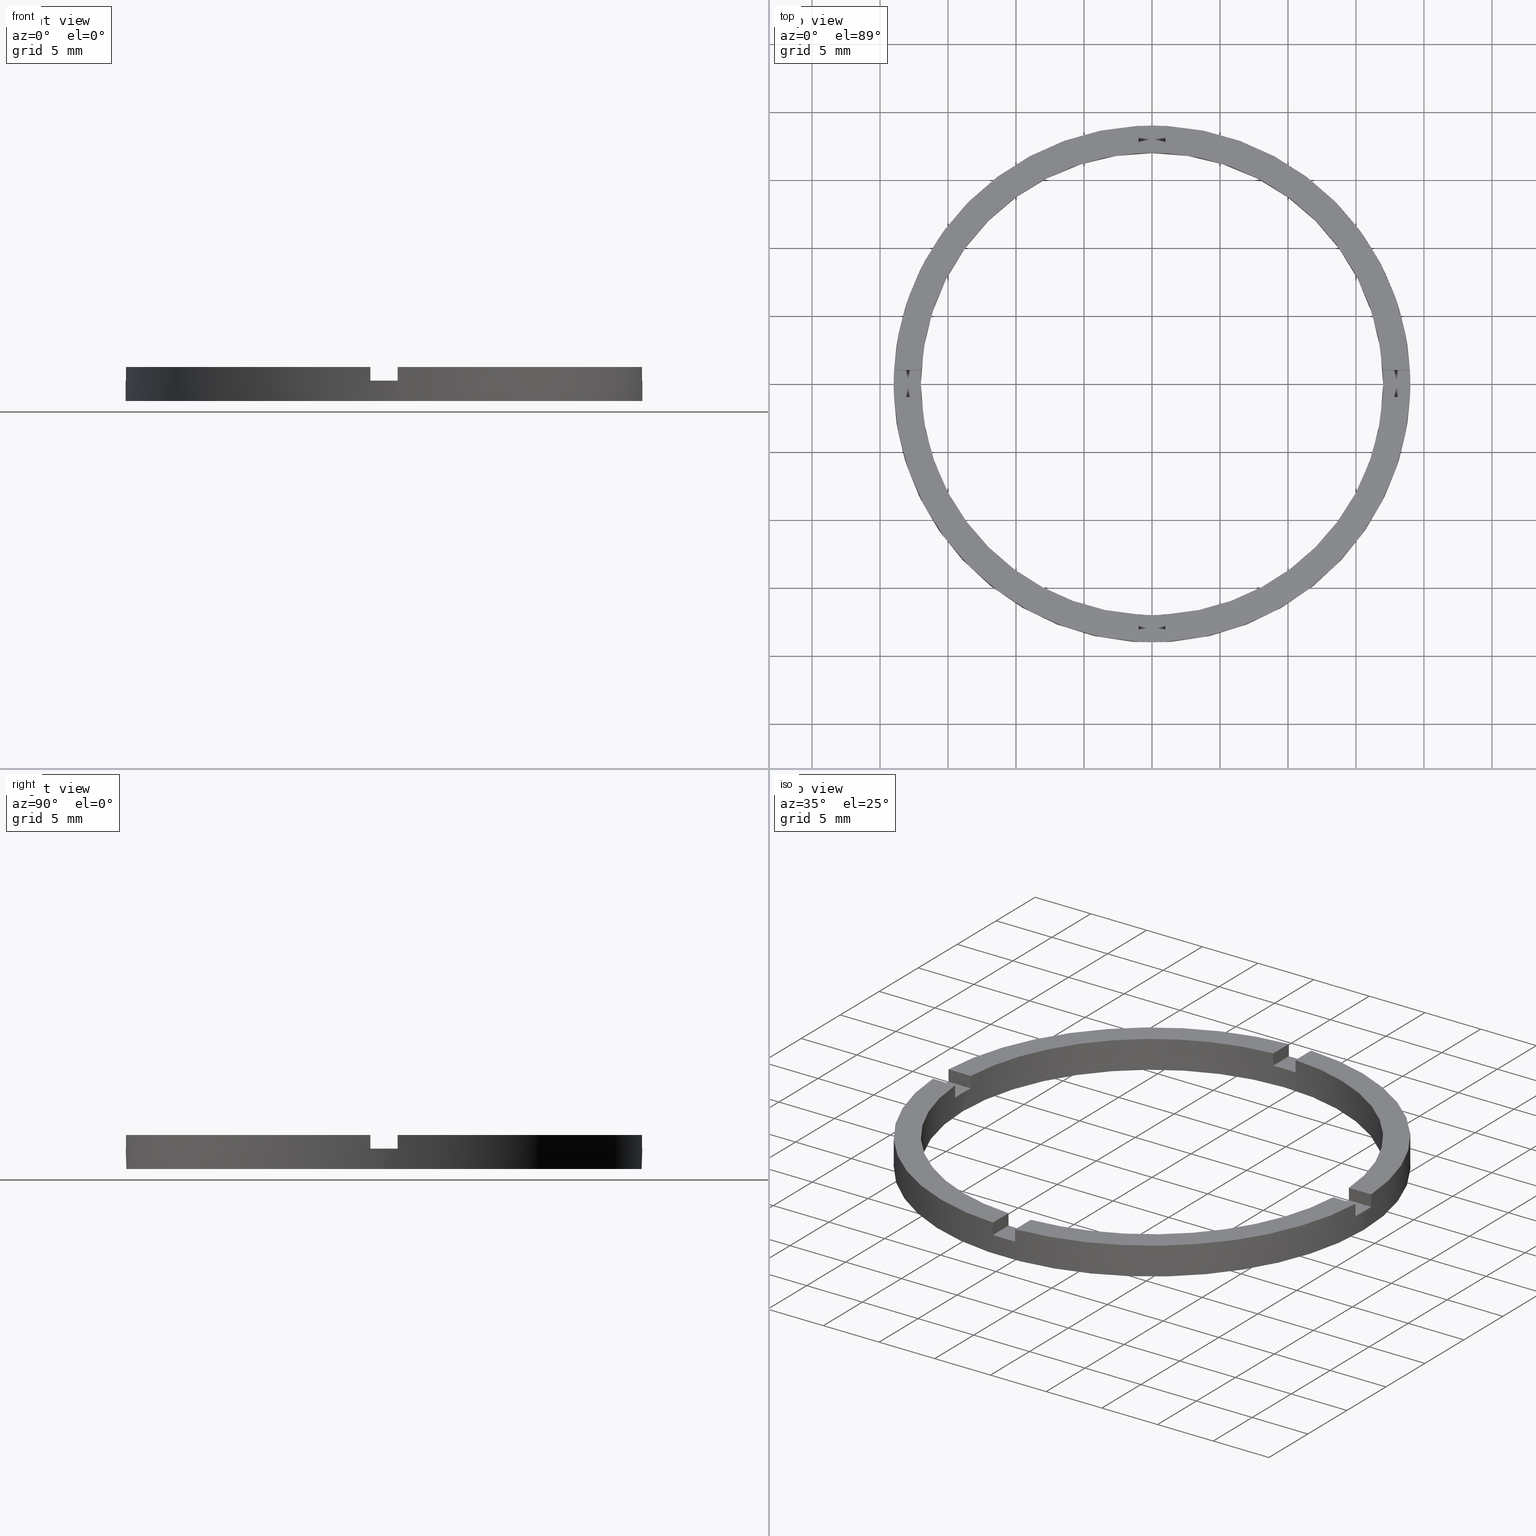
[diagram: canonical four-view strip — front | top / right | iso, engineering-drawing reading convention]
A machine part, canonical four-view strip (front | top / right | iso — engineering-drawing reading convention). The complete STEP part file that produces these views, byte-faithful:
ISO-10303-21;
HEADER;
FILE_DESCRIPTION (( 'STEP AP203' ),
    '1' );
FILE_NAME ('514081.step',
    '2024-12-26T02:35:44',
    ( 'MSI' ),
    ( '' ),
    'SwSTEP 2.0',
    'SolidWorks 2020',
    '' );
FILE_SCHEMA (( 'CONFIG_CONTROL_DESIGN' ));
ENDSEC;

DATA;
#1 = CARTESIAN_POINT ( 'NONE',  ( 0.9999999999999742428, 18.97366596101027270, 1.500000000000000000 ) ) ;
#2 = AXIS2_PLACEMENT_3D ( 'NONE', #350, #239, #781 ) ;
#3 = ADVANCED_FACE ( 'NONE', ( #130 ), #132, .F. ) ;
#4 = DIRECTION ( 'NONE',  ( -0.000000000000000000, -0.000000000000000000, -1.000000000000000000 ) ) ;
#5 = EDGE_CURVE ( 'NONE', #445, #578, #621, .T. ) ;
#6 = CARTESIAN_POINT ( 'NONE',  ( -1.000000000000024869, 16.97056274847713553, 1.500000000000000000 ) ) ;
#7 = PLANE ( 'NONE',  #146 ) ;
#8 = CARTESIAN_POINT ( 'NONE',  ( 0.9999999999999742428, 18.97366596101027270, 2.500000000000000000 ) ) ;
#9 = CC_DESIGN_APPROVAL ( #626, ( #159 ) ) ;
#10 = CARTESIAN_POINT ( 'NONE',  ( -1.000000000000024869, 16.97056274847713553, 2.500000000000000000 ) ) ;
#11 = CIRCLE ( 'NONE', #429, 17.00000000000000000 ) ;
#12 = ORIENTED_EDGE ( 'NONE', *, *, #493, .T. ) ;
#13 = CARTESIAN_POINT ( 'NONE',  ( 0.000000000000000000, 0.000000000000000000, 2.500000000000000000 ) ) ;
#14 = ORIENTED_EDGE ( 'NONE', *, *, #573, .T. ) ;
#15 = ORIENTED_EDGE ( 'NONE', *, *, #662, .F. ) ;
#16 = ORIENTED_EDGE ( 'NONE', *, *, #316, .T. ) ;
#17 = EDGE_CURVE ( 'NONE', #726, #559, #122, .T. ) ;
#18 = VERTEX_POINT ( 'NONE', #624 ) ;
#19 = PLANE ( 'NONE',  #244 ) ;
#20 = VERTEX_POINT ( 'NONE', #400 ) ;
#21 = VERTEX_POINT ( 'NONE', #743 ) ;
#22 = CIRCLE ( 'NONE', #608, 19.00000000000000000 ) ;
#23 = EDGE_LOOP ( 'NONE', ( #475, #202, #653, #313, #574, #131 ) ) ;
#24 = LINE ( 'NONE', #218, #540 ) ;
#25 = ORIENTED_EDGE ( 'NONE', *, *, #29, .F. ) ;
#26 = PERSON_AND_ORGANIZATION_ROLE ( 'creator' ) ;
#27 = ORIENTED_EDGE ( 'NONE', *, *, #503, .T. ) ;
#28 = EDGE_LOOP ( 'NONE', ( #395, #186, #567, #229 ) ) ;
#29 = EDGE_CURVE ( 'NONE', #526, #740, #384, .T. ) ;
#30 = VERTEX_POINT ( 'NONE', #10 ) ;
#31 = CARTESIAN_POINT ( 'NONE',  ( -1.000000000000161648, -18.97366596101026204, 2.500000000000000000 ) ) ;
#32 = AXIS2_PLACEMENT_3D ( 'NONE', #257, #660, #709 ) ;
#33 = EDGE_LOOP ( 'NONE', ( #16, #557, #490, #320 ) ) ;
#34 = VECTOR ( 'NONE', #83, 1000.000000000000000 ) ;
#35 = VERTEX_POINT ( 'NONE', #448 ) ;
#36 = FACE_OUTER_BOUND ( 'NONE', #446, .T. ) ;
#37 = ORIENTED_EDGE ( 'NONE', *, *, #529, .F. ) ;
#38 = LINE ( 'NONE', #456, #305 ) ;
#39 = CARTESIAN_POINT ( 'NONE',  ( -16.97056274847714263, 0.9999999999999759082, 1.500000000000000000 ) ) ;
#40 = DIRECTION ( 'NONE',  ( 0.000000000000000000, 0.000000000000000000, 1.000000000000000000 ) ) ;
#41 = CIRCLE ( 'NONE', #292, 19.00000000000000000 ) ;
#42 = EDGE_LOOP ( 'NONE', ( #555, #752, #303, #221, #732, #494, #14, #211, #728, #754, #497, #282 ) ) ;
#43 = CARTESIAN_POINT ( 'NONE',  ( 0.000000000000000000, 0.000000000000000000, 1.500000000000000000 ) ) ;
#44 = DIRECTION ( 'NONE',  ( 1.301042606982605074E-16, -1.000000000000000000, 0.000000000000000000 ) ) ;
#45 = ORIENTED_EDGE ( 'NONE', *, *, #695, .T. ) ;
#46 = ORIENTED_EDGE ( 'NONE', *, *, #604, .T. ) ;
#47 = ORIENTED_EDGE ( 'NONE', *, *, #322, .T. ) ;
#48 = DIRECTION ( 'NONE',  ( 1.301042606982605074E-16, -1.000000000000000000, 0.000000000000000000 ) ) ;
#49 = ORIENTED_EDGE ( 'NONE', *, *, #517, .F. ) ;
#50 = VERTEX_POINT ( 'NONE', #512 ) ;
#51 = CARTESIAN_POINT ( 'NONE',  ( -9.000000000000184741, 0.9999999999999774625, 2.500000000000000000 ) ) ;
#52 = ORIENTED_EDGE ( 'NONE', *, *, #250, .T. ) ;
#53 = ORIENTED_EDGE ( 'NONE', *, *, #443, .F. ) ;
#54 = DIRECTION ( 'NONE',  ( -1.000000000000000000, 0.000000000000000000, 0.000000000000000000 ) ) ;
#55 = ORIENTED_EDGE ( 'NONE', *, *, #78, .T. ) ;
#56 = ADVANCED_FACE ( 'NONE', ( #651 ), #19, .T. ) ;
#57 = DIRECTION ( 'NONE',  ( 0.000000000000000000, -0.000000000000000000, 1.000000000000000000 ) ) ;
#58 = CARTESIAN_POINT ( 'NONE',  ( -18.97366596101027625, -1.000000000000024203, 2.500000000000000000 ) ) ;
#59 = DIRECTION ( 'NONE',  ( 1.000000000000000000, 0.000000000000000000, 0.000000000000000000 ) ) ;
#60 = DIRECTION ( 'NONE',  ( 1.000000000000000000, 0.000000000000000000, 0.000000000000000000 ) ) ;
#61 = ADVANCED_FACE ( 'NONE', ( #645 ), #156, .F. ) ;
#62 = VECTOR ( 'NONE', #471, 1000.000000000000000 ) ;
#63 = VECTOR ( 'NONE', #670, 1000.000000000000000 ) ;
#64 = DIRECTION ( 'NONE',  ( 0.000000000000000000, 1.000000000000000000, 0.000000000000000000 ) ) ;
#65 = VECTOR ( 'NONE', #447, 1000.000000000000000 ) ;
#66 = EDGE_CURVE ( 'NONE', #537, #18, #369, .T. ) ;
#67 = FACE_OUTER_BOUND ( 'NONE', #708, .T. ) ;
#68 = CARTESIAN_POINT ( 'NONE',  ( 18.97366596101026914, -1.000000000000158540, 2.500000000000000000 ) ) ;
#69 = CIRCLE ( 'NONE', #765, 19.00000000000000000 ) ;
#70 = CARTESIAN_POINT ( 'NONE',  ( -17.00000000000000000, 0.000000000000000000, 1.500000000000000000 ) ) ;
#71 = FACE_OUTER_BOUND ( 'NONE', #308, .T. ) ;
#72 = VECTOR ( 'NONE', #212, 1000.000000000000000 ) ;
#73 = CARTESIAN_POINT ( 'NONE',  ( 0.000000000000000000, 0.000000000000000000, 1.500000000000000000 ) ) ;
#74 = CARTESIAN_POINT ( 'NONE',  ( 8.999999999999994671, 0.9999999999998411271, 1.500000000000000000 ) ) ;
#75 = EDGE_CURVE ( 'NONE', #569, #539, #107, .T. ) ;
#76 = CARTESIAN_POINT ( 'NONE',  ( 0.000000000000000000, 0.000000000000000000, 1.500000000000000000 ) ) ;
#77 = LINE ( 'NONE', #405, #607 ) ;
#78 = EDGE_CURVE ( 'NONE', #535, #570, #640, .T. ) ;
#79 = FACE_OUTER_BOUND ( 'NONE', #727, .T. ) ;
#80 = CARTESIAN_POINT ( 'NONE',  ( -1.000000000000025313, 9.000000000000000000, 1.500000000000000000 ) ) ;
#81 = CIRCLE ( 'NONE', #457, 17.00000000000000000 ) ;
#82 = VECTOR ( 'NONE', #172, 1000.000000000000000 ) ;
#83 = DIRECTION ( 'NONE',  ( -0.000000000000000000, -0.000000000000000000, -1.000000000000000000 ) ) ;
#84 = EDGE_CURVE ( 'NONE', #441, #210, #642, .T. ) ;
#85 = CARTESIAN_POINT ( 'NONE',  ( 17.00000000000000000, 2.081899558550500280E-15, 1.500000000000000000 ) ) ;
#86 = ADVANCED_FACE ( 'NONE', ( #128, #363 ), #314, .F. ) ;
#87 = CARTESIAN_POINT ( 'NONE',  ( -1.000000000000161871, -16.97056274847712842, 2.500000000000000000 ) ) ;
#88 = EDGE_CURVE ( 'NONE', #479, #18, #114, .T. ) ;
#89 = CC_DESIGN_SECURITY_CLASSIFICATION ( #595, ( #585 ) ) ;
#90 = DIRECTION ( 'NONE',  ( 0.000000000000000000, 0.000000000000000000, -1.000000000000000000 ) ) ;
#91 = CARTESIAN_POINT ( 'NONE',  ( 0.000000000000000000, 0.000000000000000000, 2.500000000000000000 ) ) ;
#92 = DIRECTION ( 'NONE',  ( -0.000000000000000000, -0.000000000000000000, -1.000000000000000000 ) ) ;
#93 = VECTOR ( 'NONE', #213, 1000.000000000000000 ) ;
#94 = EDGE_CURVE ( 'NONE', #462, #570, #99, .T. ) ;
#95 = DIRECTION ( 'NONE',  ( 1.000000000000000000, 0.000000000000000000, 0.000000000000000000 ) ) ;
#96 = LINE ( 'NONE', #418, #649 ) ;
#97 = AXIS2_PLACEMENT_3D ( 'NONE', #377, #402, #440 ) ;
#98 = CIRCLE ( 'NONE', #615, 19.00000000000000000 ) ;
#99 = CIRCLE ( 'NONE', #32, 19.00000000000000000 ) ;
#100 = FACE_OUTER_BOUND ( 'NONE', #500, .T. ) ;
#101 = CARTESIAN_POINT ( 'NONE',  ( -1.000000000000025313, 18.97366596101027625, 2.500000000000000000 ) ) ;
#102 = DIRECTION ( 'NONE',  ( 1.000000000000000000, 0.000000000000000000, 0.000000000000000000 ) ) ;
#103 = EDGE_CURVE ( 'NONE', #445, #21, #625, .T. ) ;
#104 = AXIS2_PLACEMENT_3D ( 'NONE', #378, #138, #188 ) ;
#105 = CARTESIAN_POINT ( 'NONE',  ( 0.000000000000000000, 0.000000000000000000, 0.000000000000000000 ) ) ;
#106 = LINE ( 'NONE', #614, #127 ) ;
#107 = CIRCLE ( 'NONE', #677, 17.00000000000000000 ) ;
#108 = CARTESIAN_POINT ( 'NONE',  ( -1.000000000000025313, 9.000000000000000000, 2.500000000000000000 ) ) ;
#109 = CARTESIAN_POINT ( 'NONE',  ( -9.000000000000184741, 0.9999999999999774625, 1.500000000000000000 ) ) ;
#110 = VECTOR ( 'NONE', #756, 1000.000000000000000 ) ;
#111 = AXIS2_PLACEMENT_3D ( 'NONE', #487, #782, #60 ) ;
#112 = ADVANCED_FACE ( 'NONE', ( #390 ), #611, .T. ) ;
#113 = DIRECTION ( 'NONE',  ( -0.000000000000000000, 0.000000000000000000, 1.000000000000000000 ) ) ;
#114 = CIRCLE ( 'NONE', #166, 17.00000000000000000 ) ;
#115 = DIRECTION ( 'NONE',  ( 1.000000000000000000, 0.000000000000000000, 0.000000000000000000 ) ) ;
#116 = LINE ( 'NONE', #364, #631 ) ;
#117 = VECTOR ( 'NONE', #182, 1000.000000000000000 ) ;
#118 = DIRECTION ( 'NONE',  ( -0.000000000000000000, -1.000000000000000000, -0.000000000000000000 ) ) ;
#119 = CARTESIAN_POINT ( 'NONE',  ( -9.000000000000184741, -1.000000000000022649, 1.500000000000000000 ) ) ;
#120 = VECTOR ( 'NONE', #175, 1000.000000000000000 ) ;
#121 = DIRECTION ( 'NONE',  ( 1.000000000000000000, 0.000000000000000000, 0.000000000000000000 ) ) ;
#122 = LINE ( 'NONE', #335, #635 ) ;
#123 = DIRECTION ( 'NONE',  ( 0.000000000000000000, 0.000000000000000000, 1.000000000000000000 ) ) ;
#124 = ADVANCED_FACE ( 'NONE', ( #362 ), #489, .T. ) ;
#125 = FACE_OUTER_BOUND ( 'NONE', #465, .T. ) ;
#126 = CARTESIAN_POINT ( 'NONE',  ( 0.000000000000000000, 0.000000000000000000, 2.500000000000000000 ) ) ;
#127 = VECTOR ( 'NONE', #610, 1000.000000000000000 ) ;
#128 = FACE_OUTER_BOUND ( 'NONE', #528, .T. ) ;
#129 = CARTESIAN_POINT ( 'NONE',  ( -18.97366596101027625, 0.9999999999999756861, 2.500000000000000000 ) ) ;
#130 = FACE_OUTER_BOUND ( 'NONE', #281, .T. ) ;
#131 = ORIENTED_EDGE ( 'NONE', *, *, #426, .T. ) ;
#132 = CYLINDRICAL_SURFACE ( 'NONE', #566, 17.00000000000000000 ) ;
#133 = CARTESIAN_POINT ( 'NONE',  ( 0.000000000000000000, 0.000000000000000000, 1.500000000000000000 ) ) ;
#134 = ORIENTED_EDGE ( 'NONE', *, *, #5, .F. ) ;
#135 = ORIENTED_EDGE ( 'NONE', *, *, #103, .T. ) ;
#136 = DIRECTION ( 'NONE',  ( 0.000000000000000000, 0.000000000000000000, 1.000000000000000000 ) ) ;
#137 = EDGE_CURVE ( 'NONE', #298, #535, #620, .T. ) ;
#138 = DIRECTION ( 'NONE',  ( 0.000000000000000000, -0.000000000000000000, 1.000000000000000000 ) ) ;
#139 = AXIS2_PLACEMENT_3D ( 'NONE', #91, #273, #522 ) ;
#140 = CARTESIAN_POINT ( 'NONE',  ( -1.000000000000162093, -18.97366596101026559, 2.500000000000000000 ) ) ;
#141 = DIRECTION ( 'NONE',  ( 0.000000000000000000, 1.000000000000000000, 0.000000000000000000 ) ) ;
#142 = COORDINATED_UNIVERSAL_TIME_OFFSET ( 8, 0, .AHEAD. ) ;
#143 = PERSON_AND_ORGANIZATION ( #579, #699 ) ;
#144 = EDGE_CURVE ( 'NONE', #569, #35, #358, .T. ) ;
#145 = DATE_AND_TIME ( #417, #155 ) ;
#146 = AXIS2_PLACEMENT_3D ( 'NONE', #587, #181, #90 ) ;
#147 = APPLICATION_CONTEXT ( 'configuration controlled 3d designs of mechanical parts and assemblies' ) ;
#148 = APPROVAL_DATE_TIME ( #689, #626 ) ;
#149 = LOCAL_TIME ( 10, 35, 44.00000000000000000, #142 ) ;
#150 = PRODUCT_RELATED_PRODUCT_CATEGORY ( 'detail', '', ( #514 ) ) ;
#151 = CARTESIAN_POINT ( 'NONE',  ( 0.9999999999998366862, -9.000000000000179412, 1.500000000000000000 ) ) ;
#152 = LOCAL_TIME ( 10, 35, 44.00000000000000000, #431 ) ;
#153 = CALENDAR_DATE ( 2024, 26, 12 ) ;
#154 = DIRECTION ( 'NONE',  ( 1.000000000000000000, 0.000000000000000000, 0.000000000000000000 ) ) ;
#155 = LOCAL_TIME ( 10, 35, 44.00000000000000000, #164 ) ;
#156 = PLANE ( 'NONE',  #702 ) ;
#157 = PERSON_AND_ORGANIZATION ( #579, #699 ) ;
#158 = PERSON_AND_ORGANIZATION ( #579, #699 ) ;
#159 = PRODUCT_DEFINITION ( 'δ֪', '', #585, #589 ) ;
#160 = APPROVAL_PERSON_ORGANIZATION ( #158, #626, #463 ) ;
#161 = CARTESIAN_POINT ( 'NONE',  ( 0.9999999999999746869, 16.97056274847714263, 2.500000000000000000 ) ) ;
#162 = DATE_TIME_ROLE ( 'classification_date' ) ;
#163 = PERSON_AND_ORGANIZATION ( #579, #699 ) ;
#164 = COORDINATED_UNIVERSAL_TIME_OFFSET ( 8, 0, .AHEAD. ) ;
#165 = CARTESIAN_POINT ( 'NONE',  ( 8.999999999999994671, -1.000000000000158984, 1.500000000000000000 ) ) ;
#166 = AXIS2_PLACEMENT_3D ( 'NONE', #73, #525, #675 ) ;
#167 = DIRECTION ( 'NONE',  ( -0.000000000000000000, -0.000000000000000000, -1.000000000000000000 ) ) ;
#168 = VERTEX_POINT ( 'NONE', #1 ) ;
#169 = CARTESIAN_POINT ( 'NONE',  ( 8.999999999999994671, -1.000000000000158984, 2.500000000000000000 ) ) ;
#170 = ORIENTED_EDGE ( 'NONE', *, *, #203, .F. ) ;
#171 = CARTESIAN_POINT ( 'NONE',  ( 19.00000000000000000, 2.326828918379970970E-15, 1.500000000000000000 ) ) ;
#172 = DIRECTION ( 'NONE',  ( 1.301042606982605074E-16, -1.000000000000000000, 0.000000000000000000 ) ) ;
#173 = EDGE_CURVE ( 'NONE', #196, #537, #366, .T. ) ;
#174 = VERTEX_POINT ( 'NONE', #6 ) ;
#175 = DIRECTION ( 'NONE',  ( 0.000000000000000000, 0.000000000000000000, 1.000000000000000000 ) ) ;
#176 = PLANE ( 'NONE',  #703 ) ;
#177 = AXIS2_PLACEMENT_3D ( 'NONE', #428, #668, #408 ) ;
#178 = EDGE_LOOP ( 'NONE', ( #467, #46, #470, #315 ) ) ;
#179 = DIRECTION ( 'NONE',  ( 0.000000000000000000, 0.000000000000000000, 1.000000000000000000 ) ) ;
#180 = ORIENTED_EDGE ( 'NONE', *, *, #403, .T. ) ;
#181 = DIRECTION ( 'NONE',  ( 1.000000000000000000, -0.000000000000000000, 0.000000000000000000 ) ) ;
#182 = DIRECTION ( 'NONE',  ( -0.000000000000000000, -1.000000000000000000, -0.000000000000000000 ) ) ;
#183 = ORIENTED_EDGE ( 'NONE', *, *, #398, .F. ) ;
#184 = VERTEX_POINT ( 'NONE', #171 ) ;
#185 = CARTESIAN_POINT ( 'NONE',  ( 19.00000000000000000, 2.326828918379970970E-15, 0.000000000000000000 ) ) ;
#186 = ORIENTED_EDGE ( 'NONE', *, *, #676, .T. ) ;
#187 = DIRECTION ( 'NONE',  ( 0.000000000000000000, 0.000000000000000000, 1.000000000000000000 ) ) ;
#188 = DIRECTION ( 'NONE',  ( 1.000000000000000000, 0.000000000000000000, 0.000000000000000000 ) ) ;
#189 = ORIENTED_EDGE ( 'NONE', *, *, #565, .F. ) ;
#190 = VERTEX_POINT ( 'NONE', #242 ) ;
#191 = DIRECTION ( 'NONE',  ( 0.000000000000000000, 0.000000000000000000, 1.000000000000000000 ) ) ;
#192 = EDGE_CURVE ( 'NONE', #479, #449, #629, .T. ) ;
#193 = EDGE_CURVE ( 'NONE', #35, #225, #622, .T. ) ;
#194 = DIRECTION ( 'NONE',  ( 0.000000000000000000, 0.000000000000000000, 1.000000000000000000 ) ) ;
#195 = EDGE_LOOP ( 'NONE', ( #738, #319, #180, #134 ) ) ;
#196 = VERTEX_POINT ( 'NONE', #251 ) ;
#197 = ORIENTED_EDGE ( 'NONE', *, *, #78, .F. ) ;
#198 = EDGE_LOOP ( 'NONE', ( #294, #483, #199, #499, #278, #744, #501, #15, #753, #287, #534, #739 ) ) ;
#199 = ORIENTED_EDGE ( 'NONE', *, *, #193, .T. ) ;
#200 = VERTEX_POINT ( 'NONE', #372 ) ;
#201 = DIRECTION ( 'NONE',  ( -0.000000000000000000, 0.000000000000000000, 1.000000000000000000 ) ) ;
#202 = ORIENTED_EDGE ( 'NONE', *, *, #173, .T. ) ;
#203 = EDGE_CURVE ( 'NONE', #530, #174, #639, .T. ) ;
#204 = PLANE ( 'NONE',  #339 ) ;
#205 = DIRECTION ( 'NONE',  ( -0.000000000000000000, -0.000000000000000000, -1.000000000000000000 ) ) ;
#206 = ORIENTED_EDGE ( 'NONE', *, *, #443, .T. ) ;
#207 = ORIENTED_EDGE ( 'NONE', *, *, #505, .T. ) ;
#208 = ORIENTED_EDGE ( 'NONE', *, *, #250, .F. ) ;
#209 = AXIS2_PLACEMENT_3D ( 'NONE', #263, #248, #498 ) ;
#210 = VERTEX_POINT ( 'NONE', #745 ) ;
#211 = ORIENTED_EDGE ( 'NONE', *, *, #17, .F. ) ;
#212 = DIRECTION ( 'NONE',  ( -0.000000000000000000, -0.000000000000000000, -1.000000000000000000 ) ) ;
#213 = DIRECTION ( 'NONE',  ( 1.000000000000000000, 1.734723475976806848E-16, -0.000000000000000000 ) ) ;
#214 = ORIENTED_EDGE ( 'NONE', *, *, #733, .F. ) ;
#215 = ORIENTED_EDGE ( 'NONE', *, *, #775, .F. ) ;
#216 = ORIENTED_EDGE ( 'NONE', *, *, #573, .F. ) ;
#217 = ORIENTED_EDGE ( 'NONE', *, *, #268, .F. ) ;
#218 = CARTESIAN_POINT ( 'NONE',  ( -19.00000000000000000, 0.000000000000000000, 2.500000000000000000 ) ) ;
#219 = CLOSED_SHELL ( 'NONE', ( #241, #288, #237, #485, #226, #124, #86, #442, #3, #716, #777, #56, #780, #61, #359, #473, #761, #671, #630, #664, #112 ) ) ;
#220 = CARTESIAN_POINT ( 'NONE',  ( -1.000000000000163203, -9.000000000000179412, 1.500000000000000000 ) ) ;
#221 = ORIENTED_EDGE ( 'NONE', *, *, #192, .F. ) ;
#222 = ORIENTED_EDGE ( 'NONE', *, *, #243, .T. ) ;
#223 = CARTESIAN_POINT ( 'NONE',  ( 0.000000000000000000, 0.000000000000000000, 1.500000000000000000 ) ) ;
#224 = ORIENTED_EDGE ( 'NONE', *, *, #747, .T. ) ;
#225 = VERTEX_POINT ( 'NONE', #383 ) ;
#226 = ADVANCED_FACE ( 'NONE', ( #100 ), #324, .T. ) ;
#227 = DIRECTION ( 'NONE',  ( 1.000000000000000000, 0.000000000000000000, -0.000000000000000000 ) ) ;
#228 = APPROVAL_STATUS ( 'not_yet_approved' ) ;
#229 = ORIENTED_EDGE ( 'NONE', *, *, #193, .F. ) ;
#230 = ORIENTED_EDGE ( 'NONE', *, *, #662, .T. ) ;
#231 = EDGE_CURVE ( 'NONE', #715, #174, #385, .T. ) ;
#232 = CC_DESIGN_DATE_AND_TIME_ASSIGNMENT ( #683, #575, ( #159 ) ) ;
#233 = VERTEX_POINT ( 'NONE', #254 ) ;
#234 = ORIENTED_EDGE ( 'NONE', *, *, #769, .T. ) ;
#235 = CARTESIAN_POINT ( 'NONE',  ( 0.000000000000000000, 0.000000000000000000, 1.500000000000000000 ) ) ;
#236 = APPLICATION_PROTOCOL_DEFINITION ( 'international standard', 'config_control_design', 1994, #597 ) ;
#237 = ADVANCED_FACE ( 'NONE', ( #125 ), #713, .T. ) ;
#238 = DIRECTION ( 'NONE',  ( 1.000000000000000000, 0.000000000000000000, -0.000000000000000000 ) ) ;
#239 = DIRECTION ( 'NONE',  ( -0.000000000000000000, -0.000000000000000000, -1.000000000000000000 ) ) ;
#240 = CARTESIAN_POINT ( 'NONE',  ( -1.000000000000024869, 18.97366596101027270, 2.500000000000000000 ) ) ;
#241 = ADVANCED_FACE ( 'NONE', ( #379 ), #373, .F. ) ;
#242 = CARTESIAN_POINT ( 'NONE',  ( 18.97366596101028335, 0.9999999999998414602, 1.500000000000000000 ) ) ;
#243 = EDGE_CURVE ( 'NONE', #712, #715, #637, .T. ) ;
#244 = AXIS2_PLACEMENT_3D ( 'NONE', #76, #179, #504 ) ;
#245 = CARTESIAN_POINT ( 'NONE',  ( 16.97056274847714974, 0.9999999999998412381, 2.500000000000000000 ) ) ;
#246 = AXIS2_PLACEMENT_3D ( 'NONE', #105, #123, #115 ) ;
#247 = DIRECTION ( 'NONE',  ( 1.000000000000000000, 0.000000000000000000, 0.000000000000000000 ) ) ;
#248 = DIRECTION ( 'NONE',  ( 0.000000000000000000, 0.000000000000000000, 1.000000000000000000 ) ) ;
#249 = CARTESIAN_POINT ( 'NONE',  ( 16.97056274847713198, -1.000000000000158762, 2.500000000000000000 ) ) ;
#250 = EDGE_CURVE ( 'NONE', #530, #168, #96, .T. ) ;
#251 = CARTESIAN_POINT ( 'NONE',  ( -19.00000000000000000, 0.000000000000000000, 1.500000000000000000 ) ) ;
#252 = AXIS2_PLACEMENT_3D ( 'NONE', #438, #680, #506 ) ;
#253 = PLANE ( 'NONE',  #97 ) ;
#254 = CARTESIAN_POINT ( 'NONE',  ( 0.9999999999998373523, -16.97056274847714974, 1.500000000000000000 ) ) ;
#255 = AXIS2_PLACEMENT_3D ( 'NONE', #347, #284, #767 ) ;
#256 = DIRECTION ( 'NONE',  ( 0.000000000000000000, 0.000000000000000000, 1.000000000000000000 ) ) ;
#257 = CARTESIAN_POINT ( 'NONE',  ( 0.000000000000000000, 0.000000000000000000, 2.500000000000000000 ) ) ;
#258 = EDGE_CURVE ( 'NONE', #530, #535, #632, .T. ) ;
#259 = CARTESIAN_POINT ( 'NONE',  ( 0.9999999999998377964, -16.97056274847715329, 2.500000000000000000 ) ) ;
#260 = CC_DESIGN_PERSON_AND_ORGANIZATION_ASSIGNMENT ( #143, #262, ( #595 ) ) ;
#261 = CARTESIAN_POINT ( 'NONE',  ( 16.97056274847713198, -1.000000000000158762, 1.500000000000000000 ) ) ;
#262 = PERSON_AND_ORGANIZATION_ROLE ( 'classification_officer' ) ;
#263 = CARTESIAN_POINT ( 'NONE',  ( 0.000000000000000000, 0.000000000000000000, 2.500000000000000000 ) ) ;
#264 = CIRCLE ( 'NONE', #469, 17.00000000000000000 ) ;
#265 = LINE ( 'NONE', #548, #301 ) ;
#266 =( NAMED_UNIT ( * ) SI_UNIT ( $, .STERADIAN. ) SOLID_ANGLE_UNIT ( ) );
#267 = CARTESIAN_POINT ( 'NONE',  ( 0.000000000000000000, 0.000000000000000000, 1.500000000000000000 ) ) ;
#268 = EDGE_CURVE ( 'NONE', #168, #715, #98, .T. ) ;
#269 = LINE ( 'NONE', #773, #542 ) ;
#270 = VERTEX_POINT ( 'NONE', #249 ) ;
#271 = LINE ( 'NONE', #771, #523 ) ;
#272 = ORIENTED_EDGE ( 'NONE', *, *, #545, .T. ) ;
#273 = DIRECTION ( 'NONE',  ( 0.000000000000000000, 0.000000000000000000, 1.000000000000000000 ) ) ;
#274 = DIRECTION ( 'NONE',  ( -0.000000000000000000, -0.000000000000000000, -1.000000000000000000 ) ) ;
#275 = ORIENTED_EDGE ( 'NONE', *, *, #192, .T. ) ;
#276 = ORIENTED_EDGE ( 'NONE', *, *, #396, .T. ) ;
#277 = DIRECTION ( 'NONE',  ( -1.301042606982605074E-16, 1.000000000000000000, 0.000000000000000000 ) ) ;
#278 = ORIENTED_EDGE ( 'NONE', *, *, #452, .T. ) ;
#279 = EDGE_LOOP ( 'NONE', ( #706, #719, #170, #52 ) ) ;
#280 = DIRECTION ( 'NONE',  ( 1.000000000000000000, 0.000000000000000000, 0.000000000000000000 ) ) ;
#281 = EDGE_LOOP ( 'NONE', ( #214, #276, #571, #659, #458, #741, #300, #562, #657, #207, #275, #310 ) ) ;
#282 = ORIENTED_EDGE ( 'NONE', *, *, #676, .F. ) ;
#283 = DIRECTION ( 'NONE',  ( 0.000000000000000000, 0.000000000000000000, 1.000000000000000000 ) ) ;
#284 = DIRECTION ( 'NONE',  ( 0.000000000000000000, 0.000000000000000000, 1.000000000000000000 ) ) ;
#285 = AXIS2_PLACEMENT_3D ( 'NONE', #617, #136, #353 ) ;
#286 = DIRECTION ( 'NONE',  ( 1.000000000000000000, 0.000000000000000000, 0.000000000000000000 ) ) ;
#287 = ORIENTED_EDGE ( 'NONE', *, *, #173, .F. ) ;
#288 = ADVANCED_FACE ( 'NONE', ( #648 ), #633, .T. ) ;
#289 = LINE ( 'NONE', #406, #34 ) ;
#290 = ORIENTED_EDGE ( 'NONE', *, *, #594, .T. ) ;
#291 = CARTESIAN_POINT ( 'NONE',  ( 8.999999999999994671, 0.9999999999998411271, 1.500000000000000000 ) ) ;
#292 = AXIS2_PLACEMENT_3D ( 'NONE', #513, #638, #698 ) ;
#293 = CIRCLE ( 'NONE', #656, 17.00000000000000000 ) ;
#294 = ORIENTED_EDGE ( 'NONE', *, *, #520, .F. ) ;
#295 = ORIENTED_EDGE ( 'NONE', *, *, #29, .T. ) ;
#296 = CARTESIAN_POINT ( 'NONE',  ( -1.000000000000024869, 18.97366596101027270, 1.500000000000000000 ) ) ;
#297 = LINE ( 'NONE', #259, #554 ) ;
#298 = VERTEX_POINT ( 'NONE', #245 ) ;
#299 = FACE_OUTER_BOUND ( 'NONE', #33, .T. ) ;
#300 = ORIENTED_EDGE ( 'NONE', *, *, #349, .F. ) ;
#301 = VECTOR ( 'NONE', #256, 1000.000000000000000 ) ;
#302 =( GEOMETRIC_REPRESENTATION_CONTEXT ( 3 ) GLOBAL_UNCERTAINTY_ASSIGNED_CONTEXT ( ( #507 ) ) GLOBAL_UNIT_ASSIGNED_CONTEXT ( ( #411, #399, #266 ) ) REPRESENTATION_CONTEXT ( 'NONE', 'WORKASPACE' ) );
#303 = ORIENTED_EDGE ( 'NONE', *, *, #747, .F. ) ;
#304 = ORIENTED_EDGE ( 'NONE', *, *, #521, .T. ) ;
#305 = VECTOR ( 'NONE', #647, 1000.000000000000000 ) ;
#306 = ORIENTED_EDGE ( 'NONE', *, *, #521, .F. ) ;
#307 = DIRECTION ( 'NONE',  ( 0.000000000000000000, -0.000000000000000000, 1.000000000000000000 ) ) ;
#308 = EDGE_LOOP ( 'NONE', ( #295, #655, #481, #572 ) ) ;
#309 = LINE ( 'NONE', #413, #62 ) ;
#310 = ORIENTED_EDGE ( 'NONE', *, *, #503, .F. ) ;
#311 = EDGE_LOOP ( 'NONE', ( #135, #318, #189, #12 ) ) ;
#312 = CIRCLE ( 'NONE', #255, 17.00000000000000000 ) ;
#313 = ORIENTED_EDGE ( 'NONE', *, *, #88, .F. ) ;
#314 = PLANE ( 'NONE',  #577 ) ;
#315 = ORIENTED_EDGE ( 'NONE', *, *, #452, .F. ) ;
#316 = EDGE_CURVE ( 'NONE', #712, #30, #370, .T. ) ;
#317 = CIRCLE ( 'NONE', #111, 17.00000000000000000 ) ;
#318 = ORIENTED_EDGE ( 'NONE', *, *, #338, .T. ) ;
#319 = ORIENTED_EDGE ( 'NONE', *, *, #17, .T. ) ;
#320 = ORIENTED_EDGE ( 'NONE', *, *, #243, .F. ) ;
#321 = FACE_OUTER_BOUND ( 'NONE', #178, .T. ) ;
#322 = EDGE_CURVE ( 'NONE', #298, #742, #116, .T. ) ;
#323 = LINE ( 'NONE', #425, #63 ) ;
#324 = PLANE ( 'NONE',  #252 ) ;
#325 = AXIS2_PLACEMENT_3D ( 'NONE', #553, #694, #336 ) ;
#326 = FACE_OUTER_BOUND ( 'NONE', #28, .T. ) ;
#327 = DIRECTION ( 'NONE',  ( -1.301042606982605074E-16, 1.000000000000000000, -0.000000000000000000 ) ) ;
#328 = LINE ( 'NONE', #51, #583 ) ;
#329 = DIRECTION ( 'NONE',  ( 0.000000000000000000, 0.000000000000000000, 1.000000000000000000 ) ) ;
#330 = VECTOR ( 'NONE', #714, 1000.000000000000000 ) ;
#331 = CARTESIAN_POINT ( 'NONE',  ( -18.97366596101027625, -1.000000000000024203, 2.500000000000000000 ) ) ;
#332 = LINE ( 'NONE', #58, #72 ) ;
#333 = PLANE ( 'NONE',  #770 ) ;
#334 = CIRCLE ( 'NONE', #246, 19.00000000000000000 ) ;
#335 = CARTESIAN_POINT ( 'NONE',  ( -1.000000000000162315, -16.97056274847713198, 2.500000000000000000 ) ) ;
#336 = DIRECTION ( 'NONE',  ( 1.000000000000000000, 0.000000000000000000, 0.000000000000000000 ) ) ;
#337 = VECTOR ( 'NONE', #348, 1000.000000000000000 ) ;
#338 = EDGE_CURVE ( 'NONE', #21, #233, #106, .T. ) ;
#339 = AXIS2_PLACEMENT_3D ( 'NONE', #109, #582, #644 ) ;
#340 = CYLINDRICAL_SURFACE ( 'NONE', #751, 19.00000000000000000 ) ;
#341 = DIRECTION ( 'NONE',  ( 0.000000000000000000, 0.000000000000000000, 1.000000000000000000 ) ) ;
#342 = CIRCLE ( 'NONE', #139, 19.00000000000000000 ) ;
#343 = DIRECTION ( 'NONE',  ( 1.000000000000000000, 0.000000000000000000, -0.000000000000000000 ) ) ;
#344 = CC_DESIGN_PERSON_AND_ORGANIZATION_ASSIGNMENT ( #439, #515, ( #514 ) ) ;
#345 = ADVANCED_BREP_SHAPE_REPRESENTATION ( '514081', ( #618, #663 ), #302 ) ;
#346 = CARTESIAN_POINT ( 'NONE',  ( -1.000000000000163203, -9.000000000000179412, 2.500000000000000000 ) ) ;
#347 = CARTESIAN_POINT ( 'NONE',  ( 0.000000000000000000, 0.000000000000000000, 2.500000000000000000 ) ) ;
#348 = DIRECTION ( 'NONE',  ( -1.000000000000000000, -4.336808689942017120E-17, -0.000000000000000000 ) ) ;
#349 = EDGE_CURVE ( 'NONE', #30, #174, #371, .T. ) ;
#350 = CARTESIAN_POINT ( 'NONE',  ( 0.000000000000000000, 0.000000000000000000, 2.500000000000000000 ) ) ;
#351 = CARTESIAN_POINT ( 'NONE',  ( 16.97056274847714974, 0.9999999999998412381, 1.500000000000000000 ) ) ;
#352 = AXIS2_PLACEMENT_3D ( 'NONE', #669, #356, #227 ) ;
#353 = DIRECTION ( 'NONE',  ( 1.000000000000000000, 0.000000000000000000, -0.000000000000000000 ) ) ;
#354 = AXIS2_PLACEMENT_3D ( 'NONE', #80, #737, #187 ) ;
#355 = VECTOR ( 'NONE', #717, 1000.000000000000000 ) ;
#356 = DIRECTION ( 'NONE',  ( 0.000000000000000000, 0.000000000000000000, 1.000000000000000000 ) ) ;
#357 = DIRECTION ( 'NONE',  ( 1.000000000000000000, 1.734723475976806848E-16, 0.000000000000000000 ) ) ;
#358 = LINE ( 'NONE', #667, #355 ) ;
#359 = ADVANCED_FACE ( 'NONE', ( #380 ), #422, .T. ) ;
#360 = VECTOR ( 'NONE', #4, 1000.000000000000000 ) ;
#361 = CARTESIAN_POINT ( 'NONE',  ( 0.000000000000000000, 0.000000000000000000, 0.000000000000000000 ) ) ;
#362 = FACE_OUTER_BOUND ( 'NONE', #486, .T. ) ;
#363 = FACE_BOUND ( 'NONE', #759, .T. ) ;
#364 = CARTESIAN_POINT ( 'NONE',  ( 16.97056274847714974, 0.9999999999998412381, 2.500000000000000000 ) ) ;
#365 = VECTOR ( 'NONE', #327, 1000.000000000000000 ) ;
#366 = CIRCLE ( 'NONE', #434, 19.00000000000000000 ) ;
#367 = VECTOR ( 'NONE', #544, 1000.000000000000000 ) ;
#368 = CARTESIAN_POINT ( 'NONE',  ( 0.000000000000000000, 0.000000000000000000, 2.500000000000000000 ) ) ;
#369 = LINE ( 'NONE', #768, #93 ) ;
#370 = LINE ( 'NONE', #108, #388 ) ;
#371 = LINE ( 'NONE', #673, #376 ) ;
#372 = CARTESIAN_POINT ( 'NONE',  ( -16.97056274847714263, 0.9999999999999759082, 2.500000000000000000 ) ) ;
#373 = CYLINDRICAL_SURFACE ( 'NONE', #2, 17.00000000000000000 ) ;
#374 = EDGE_CURVE ( 'NONE', #462, #298, #382, .T. ) ;
#375 = CC_DESIGN_PERSON_AND_ORGANIZATION_ASSIGNMENT ( #157, #518, ( #159 ) ) ;
#376 = VECTOR ( 'NONE', #729, 1000.000000000000000 ) ;
#377 = CARTESIAN_POINT ( 'NONE',  ( 0.000000000000000000, 0.000000000000000000, 1.500000000000000000 ) ) ;
#378 = CARTESIAN_POINT ( 'NONE',  ( 0.000000000000000000, 0.000000000000000000, 1.500000000000000000 ) ) ;
#379 = FACE_OUTER_BOUND ( 'NONE', #42, .T. ) ;
#380 = FACE_OUTER_BOUND ( 'NONE', #311, .T. ) ;
#381 = VECTOR ( 'NONE', #191, 1000.000000000000000 ) ;
#382 = LINE ( 'NONE', #650, #389 ) ;
#383 = CARTESIAN_POINT ( 'NONE',  ( 18.97366596101026914, -1.000000000000158540, 2.500000000000000000 ) ) ;
#384 = LINE ( 'NONE', #688, #110 ) ;
#385 = LINE ( 'NONE', #619, #117 ) ;
#386 = DIRECTION ( 'NONE',  ( -0.000000000000000000, -0.000000000000000000, -1.000000000000000000 ) ) ;
#387 = AXIS2_PLACEMENT_3D ( 'NONE', #430, #113, #247 ) ;
#388 = VECTOR ( 'NONE', #118, 1000.000000000000000 ) ;
#389 = VECTOR ( 'NONE', #661, 1000.000000000000000 ) ;
#390 = FACE_OUTER_BOUND ( 'NONE', #279, .T. ) ;
#391 = CARTESIAN_POINT ( 'NONE',  ( 0.000000000000000000, 0.000000000000000000, 2.500000000000000000 ) ) ;
#392 = APPROVAL_STATUS ( 'not_yet_approved' ) ;
#393 = DIRECTION ( 'NONE',  ( -1.000000000000000000, 0.000000000000000000, 0.000000000000000000 ) ) ;
#394 = VERTEX_POINT ( 'NONE', #39 ) ;
#395 = ORIENTED_EDGE ( 'NONE', *, *, #144, .F. ) ;
#396 = EDGE_CURVE ( 'NONE', #539, #742, #81, .T. ) ;
#397 = DIRECTION ( 'NONE',  ( 0.000000000000000000, 0.000000000000000000, 1.000000000000000000 ) ) ;
#398 = EDGE_CURVE ( 'NONE', #576, #730, #334, .T. ) ;
#399 =( NAMED_UNIT ( * ) PLANE_ANGLE_UNIT ( ) SI_UNIT ( $, .RADIAN. ) );
#400 = CARTESIAN_POINT ( 'NONE',  ( 17.00000000000000000, 2.081899558550500280E-15, 0.000000000000000000 ) ) ;
#401 = CARTESIAN_POINT ( 'NONE',  ( 0.000000000000000000, 0.000000000000000000, 1.500000000000000000 ) ) ;
#402 = DIRECTION ( 'NONE',  ( 0.000000000000000000, 0.000000000000000000, 1.000000000000000000 ) ) ;
#403 = EDGE_CURVE ( 'NONE', #559, #578, #605, .T. ) ;
#404 = CC_DESIGN_PERSON_AND_ORGANIZATION_ASSIGNMENT ( #163, #26, ( #585 ) ) ;
#405 = CARTESIAN_POINT ( 'NONE',  ( -9.000000000000184741, 0.9999999999999774625, 1.500000000000000000 ) ) ;
#406 = CARTESIAN_POINT ( 'NONE',  ( 19.00000000000000000, 2.326828918379970970E-15, 2.500000000000000000 ) ) ;
#407 = DIRECTION ( 'NONE',  ( 4.336808689942017120E-17, -1.000000000000000000, 0.000000000000000000 ) ) ;
#408 = DIRECTION ( 'NONE',  ( 1.000000000000000000, 0.000000000000000000, 0.000000000000000000 ) ) ;
#409 = CALENDAR_DATE ( 2024, 26, 12 ) ;
#410 = DIRECTION ( 'NONE',  ( -0.000000000000000000, -0.000000000000000000, -1.000000000000000000 ) ) ;
#411 =( LENGTH_UNIT ( ) NAMED_UNIT ( * ) SI_UNIT ( .MILLI., .METRE. ) );
#412 = EDGE_CURVE ( 'NONE', #441, #225, #342, .T. ) ;
#413 = CARTESIAN_POINT ( 'NONE',  ( 18.97366596101028335, 0.9999999999998414602, 2.500000000000000000 ) ) ;
#414 = COORDINATED_UNIVERSAL_TIME_OFFSET ( 8, 0, .AHEAD. ) ;
#415 = CARTESIAN_POINT ( 'NONE',  ( -1.000000000000161648, -18.97366596101026204, 1.500000000000000000 ) ) ;
#416 = PERSON_AND_ORGANIZATION ( #579, #699 ) ;
#417 = CALENDAR_DATE ( 2024, 26, 12 ) ;
#418 = CARTESIAN_POINT ( 'NONE',  ( 0.9999999999999746869, 9.000000000000000000, 1.500000000000000000 ) ) ;
#419 = CARTESIAN_POINT ( 'NONE',  ( -16.97056274847714263, 0.9999999999999759082, 2.500000000000000000 ) ) ;
#420 = LOCAL_TIME ( 10, 35, 44.00000000000000000, #678 ) ;
#421 = CARTESIAN_POINT ( 'NONE',  ( 0.000000000000000000, 0.000000000000000000, 2.500000000000000000 ) ) ;
#422 = PLANE ( 'NONE',  #177 ) ;
#423 = CALENDAR_DATE ( 2024, 26, 12 ) ;
#424 = APPROVAL_DATE_TIME ( #145, #546 ) ;
#425 = CARTESIAN_POINT ( 'NONE',  ( 17.00000000000000000, 2.081899558550500280E-15, 2.500000000000000000 ) ) ;
#426 = EDGE_CURVE ( 'NONE', #394, #50, #77, .T. ) ;
#427 = CARTESIAN_POINT ( 'NONE',  ( 0.000000000000000000, 0.000000000000000000, 1.500000000000000000 ) ) ;
#428 = CARTESIAN_POINT ( 'NONE',  ( 0.000000000000000000, 0.000000000000000000, 1.500000000000000000 ) ) ;
#429 = AXIS2_PLACEMENT_3D ( 'NONE', #401, #201, #634 ) ;
#430 = CARTESIAN_POINT ( 'NONE',  ( 0.000000000000000000, 0.000000000000000000, 1.500000000000000000 ) ) ;
#431 = COORDINATED_UNIVERSAL_TIME_OFFSET ( 8, 0, .AHEAD. ) ;
#432 = PERSON_AND_ORGANIZATION ( #579, #699 ) ;
#433 = APPROVAL_DATE_TIME ( #686, #696 ) ;
#434 = AXIS2_PLACEMENT_3D ( 'NONE', #427, #531, #121 ) ;
#435 = PERSON_AND_ORGANIZATION ( #579, #699 ) ;
#436 = AXIS2_PLACEMENT_3D ( 'NONE', #119, #606, #357 ) ;
#437 = CARTESIAN_POINT ( 'NONE',  ( 0.000000000000000000, 0.000000000000000000, 2.500000000000000000 ) ) ;
#438 = CARTESIAN_POINT ( 'NONE',  ( 0.000000000000000000, 0.000000000000000000, 2.500000000000000000 ) ) ;
#439 = PERSON_AND_ORGANIZATION ( #579, #699 ) ;
#440 = DIRECTION ( 'NONE',  ( 1.000000000000000000, 0.000000000000000000, -0.000000000000000000 ) ) ;
#441 = VERTEX_POINT ( 'NONE', #466 ) ;
#442 = ADVANCED_FACE ( 'NONE', ( #596 ), #340, .T. ) ;
#443 = EDGE_CURVE ( 'NONE', #190, #742, #599, .T. ) ;
#444 = ORIENTED_EDGE ( 'NONE', *, *, #720, .T. ) ;
#445 = VERTEX_POINT ( 'NONE', #415 ) ;
#446 = EDGE_LOOP ( 'NONE', ( #722, #234, #206, #474, #750, #723 ) ) ;
#447 = DIRECTION ( 'NONE',  ( 1.000000000000000000, 4.336808689942017120E-17, 0.000000000000000000 ) ) ;
#448 = CARTESIAN_POINT ( 'NONE',  ( 18.97366596101026914, -1.000000000000158540, 1.500000000000000000 ) ) ;
#449 = VERTEX_POINT ( 'NONE', #472 ) ;
#450 = ORIENTED_EDGE ( 'NONE', *, *, #374, .F. ) ;
#451 = DIRECTION ( 'NONE',  ( 1.000000000000000000, 0.000000000000000000, 0.000000000000000000 ) ) ;
#452 = EDGE_CURVE ( 'NONE', #441, #21, #598, .T. ) ;
#453 = CARTESIAN_POINT ( 'NONE',  ( 0.000000000000000000, 0.000000000000000000, 0.000000000000000000 ) ) ;
#454 = DIRECTION ( 'NONE',  ( 0.000000000000000000, 0.000000000000000000, 1.000000000000000000 ) ) ;
#455 = ORIENTED_EDGE ( 'NONE', *, *, #426, .F. ) ;
#456 = CARTESIAN_POINT ( 'NONE',  ( 16.97056274847713198, -1.000000000000158762, 2.500000000000000000 ) ) ;
#457 = AXIS2_PLACEMENT_3D ( 'NONE', #223, #718, #280 ) ;
#458 = ORIENTED_EDGE ( 'NONE', *, *, #258, .F. ) ;
#459 = DIRECTION ( 'NONE',  ( -1.000000000000000000, -1.734723475976806848E-16, 0.000000000000000000 ) ) ;
#460 = CARTESIAN_POINT ( 'NONE',  ( 0.000000000000000000, 0.000000000000000000, 0.000000000000000000 ) ) ;
#461 = ORIENTED_EDGE ( 'NONE', *, *, #545, .F. ) ;
#462 = VERTEX_POINT ( 'NONE', #734 ) ;
#463 = APPROVAL_ROLE ( '' ) ;
#464 = VERTEX_POINT ( 'NONE', #129 ) ;
#465 = EDGE_LOOP ( 'NONE', ( #484, #304, #482, #215 ) ) ;
#466 = CARTESIAN_POINT ( 'NONE',  ( 0.9999999999998375744, -18.97366596101028335, 2.500000000000000000 ) ) ;
#467 = ORIENTED_EDGE ( 'NONE', *, *, #84, .T. ) ;
#468 = PLANE ( 'NONE',  #568 ) ;
#469 = AXIS2_PLACEMENT_3D ( 'NONE', #641, #700, #154 ) ;
#470 = ORIENTED_EDGE ( 'NONE', *, *, #338, .F. ) ;
#471 = DIRECTION ( 'NONE',  ( -0.000000000000000000, -0.000000000000000000, -1.000000000000000000 ) ) ;
#472 = CARTESIAN_POINT ( 'NONE',  ( -17.00000000000000000, 0.000000000000000000, 0.000000000000000000 ) ) ;
#473 = ADVANCED_FACE ( 'NONE', ( #79 ), #613, .F. ) ;
#474 = ORIENTED_EDGE ( 'NONE', *, *, #396, .F. ) ;
#475 = ORIENTED_EDGE ( 'NONE', *, *, #672, .T. ) ;
#476 = CARTESIAN_POINT ( 'NONE',  ( -1.000000000000161871, -16.97056274847712842, 1.500000000000000000 ) ) ;
#477 = CC_DESIGN_APPROVAL ( #696, ( #595 ) ) ;
#478 = ORIENTED_EDGE ( 'NONE', *, *, #258, .T. ) ;
#479 = VERTEX_POINT ( 'NONE', #70 ) ;
#480 = DIRECTION ( 'NONE',  ( 1.000000000000000000, 0.000000000000000000, 0.000000000000000000 ) ) ;
#481 = ORIENTED_EDGE ( 'NONE', *, *, #66, .F. ) ;
#482 = ORIENTED_EDGE ( 'NONE', *, *, #695, .F. ) ;
#483 = ORIENTED_EDGE ( 'NONE', *, *, #701, .F. ) ;
#484 = ORIENTED_EDGE ( 'NONE', *, *, #316, .F. ) ;
#485 = ADVANCED_FACE ( 'NONE', ( #602 ), #176, .T. ) ;
#486 = EDGE_LOOP ( 'NONE', ( #550, #216, #25, #230 ) ) ;
#487 = CARTESIAN_POINT ( 'NONE',  ( 0.000000000000000000, 0.000000000000000000, 0.000000000000000000 ) ) ;
#488 = ORIENTED_EDGE ( 'NONE', *, *, #758, .F. ) ;
#489 = PLANE ( 'NONE',  #285 ) ;
#490 = ORIENTED_EDGE ( 'NONE', *, *, #231, .F. ) ;
#491 = ORIENTED_EDGE ( 'NONE', *, *, #769, .F. ) ;
#492 = ORIENTED_EDGE ( 'NONE', *, *, #398, .T. ) ;
#493 = EDGE_CURVE ( 'NONE', #726, #445, #269, .T. ) ;
#494 = ORIENTED_EDGE ( 'NONE', *, *, #510, .F. ) ;
#495 = ORIENTED_EDGE ( 'NONE', *, *, #94, .T. ) ;
#496 = DIRECTION ( 'NONE',  ( 0.000000000000000000, 0.000000000000000000, 1.000000000000000000 ) ) ;
#497 = ORIENTED_EDGE ( 'NONE', *, *, #529, .T. ) ;
#498 = DIRECTION ( 'NONE',  ( 1.000000000000000000, 0.000000000000000000, 0.000000000000000000 ) ) ;
#499 = ORIENTED_EDGE ( 'NONE', *, *, #412, .F. ) ;
#500 = EDGE_LOOP ( 'NONE', ( #488, #37, #543, #757 ) ) ;
#501 = ORIENTED_EDGE ( 'NONE', *, *, #5, .T. ) ;
#502 = DIRECTION ( 'NONE',  ( 1.000000000000000000, 0.000000000000000000, -0.000000000000000000 ) ) ;
#503 = EDGE_CURVE ( 'NONE', #20, #449, #293, .T. ) ;
#504 = DIRECTION ( 'NONE',  ( 1.000000000000000000, 0.000000000000000000, -0.000000000000000000 ) ) ;
#505 = EDGE_CURVE ( 'NONE', #394, #479, #264, .T. ) ;
#506 = DIRECTION ( 'NONE',  ( 1.000000000000000000, 0.000000000000000000, -0.000000000000000000 ) ) ;
#507 = UNCERTAINTY_MEASURE_WITH_UNIT (LENGTH_MEASURE( 1.000000000000000082E-05 ), #411, 'distance_accuracy_value', 'NONE');
#508 = CARTESIAN_POINT ( 'NONE',  ( 0.9999999999999742428, 16.97056274847713908, 2.500000000000000000 ) ) ;
#509 = DIRECTION ( 'NONE',  ( 1.000000000000000000, 0.000000000000000000, 0.000000000000000000 ) ) ;
#510 = EDGE_CURVE ( 'NONE', #740, #18, #271, .T. ) ;
#511 = DIRECTION ( 'NONE',  ( 0.000000000000000000, 0.000000000000000000, 1.000000000000000000 ) ) ;
#512 = CARTESIAN_POINT ( 'NONE',  ( -18.97366596101027625, 0.9999999999999756861, 1.500000000000000000 ) ) ;
#513 = CARTESIAN_POINT ( 'NONE',  ( 0.000000000000000000, 0.000000000000000000, 0.000000000000000000 ) ) ;
#514 = PRODUCT ( '514081', '514081', '', ( #658 ) ) ;
#515 = PERSON_AND_ORGANIZATION_ROLE ( 'design_owner' ) ;
#516 = CARTESIAN_POINT ( 'NONE',  ( 0.9999999999999746869, 9.000000000000000000, 2.500000000000000000 ) ) ;
#517 = EDGE_CURVE ( 'NONE', #196, #730, #24, .T. ) ;
#518 = PERSON_AND_ORGANIZATION_ROLE ( 'creator' ) ;
#519 = DIRECTION ( 'NONE',  ( -1.000000000000000000, 0.000000000000000000, 0.000000000000000000 ) ) ;
#520 = EDGE_CURVE ( 'NONE', #184, #576, #289, .T. ) ;
#521 = EDGE_CURVE ( 'NONE', #712, #464, #22, .T. ) ;
#522 = DIRECTION ( 'NONE',  ( 1.000000000000000000, 0.000000000000000000, 0.000000000000000000 ) ) ;
#523 = VECTOR ( 'NONE', #92, 1000.000000000000000 ) ;
#524 = AXIS2_PLACEMENT_3D ( 'NONE', #74, #533, #725 ) ;
#525 = DIRECTION ( 'NONE',  ( 0.000000000000000000, 0.000000000000000000, 1.000000000000000000 ) ) ;
#526 = VERTEX_POINT ( 'NONE', #331 ) ;
#527 = CARTESIAN_POINT ( 'NONE',  ( -19.00000000000000000, 0.000000000000000000, 0.000000000000000000 ) ) ;
#528 = EDGE_LOOP ( 'NONE', ( #749, #183 ) ) ;
#529 = EDGE_CURVE ( 'NONE', #210, #270, #532, .T. ) ;
#530 = VERTEX_POINT ( 'NONE', #616 ) ;
#531 = DIRECTION ( 'NONE',  ( 0.000000000000000000, 0.000000000000000000, 1.000000000000000000 ) ) ;
#532 = CIRCLE ( 'NONE', #711, 17.00000000000000000 ) ;
#533 = DIRECTION ( 'NONE',  ( -4.336808689942017120E-17, 1.000000000000000000, 0.000000000000000000 ) ) ;
#534 = ORIENTED_EDGE ( 'NONE', *, *, #517, .T. ) ;
#535 = VERTEX_POINT ( 'NONE', #508 ) ;
#536 = DIRECTION ( 'NONE',  ( -0.000000000000000000, -0.000000000000000000, -1.000000000000000000 ) ) ;
#537 = VERTEX_POINT ( 'NONE', #580 ) ;
#538 = LINE ( 'NONE', #558, #551 ) ;
#539 = VERTEX_POINT ( 'NONE', #85 ) ;
#540 = VECTOR ( 'NONE', #274, 1000.000000000000000 ) ;
#541 = ORIENTED_EDGE ( 'NONE', *, *, #520, .T. ) ;
#542 = VECTOR ( 'NONE', #48, 1000.000000000000000 ) ;
#543 = ORIENTED_EDGE ( 'NONE', *, *, #84, .F. ) ;
#544 = DIRECTION ( 'NONE',  ( -0.000000000000000000, -0.000000000000000000, -1.000000000000000000 ) ) ;
#545 = EDGE_CURVE ( 'NONE', #50, #464, #538, .T. ) ;
#546 = APPROVAL ( #591, 'δָ��' ) ;
#547 = EDGE_LOOP ( 'NONE', ( #491, #541, #492, #49, #763, #272, #306, #222, #217, #290, #690, #731 ) ) ;
#548 = CARTESIAN_POINT ( 'NONE',  ( 0.9999999999999746869, 18.97366596101027625, 2.500000000000000000 ) ) ;
#549 = CIRCLE ( 'NONE', #681, 17.00000000000000000 ) ;
#550 = ORIENTED_EDGE ( 'NONE', *, *, #403, .F. ) ;
#551 = VECTOR ( 'NONE', #194, 1000.000000000000000 ) ;
#552 = EDGE_LOOP ( 'NONE', ( #208, #478, #55, #564 ) ) ;
#553 = CARTESIAN_POINT ( 'NONE',  ( 0.000000000000000000, 0.000000000000000000, 1.500000000000000000 ) ) ;
#554 = VECTOR ( 'NONE', #386, 1000.000000000000000 ) ;
#555 = ORIENTED_EDGE ( 'NONE', *, *, #75, .T. ) ;
#556 = CIRCLE ( 'NONE', #209, 19.00000000000000000 ) ;
#557 = ORIENTED_EDGE ( 'NONE', *, *, #349, .T. ) ;
#558 = CARTESIAN_POINT ( 'NONE',  ( -18.97366596101027625, 0.9999999999999756861, 2.500000000000000000 ) ) ;
#559 = VERTEX_POINT ( 'NONE', #87 ) ;
#560 = CARTESIAN_POINT ( 'NONE',  ( 0.9999999999998366862, -9.000000000000179412, 2.500000000000000000 ) ) ;
#561 = CIRCLE ( 'NONE', #325, 19.00000000000000000 ) ;
#562 = ORIENTED_EDGE ( 'NONE', *, *, #775, .T. ) ;
#563 = FACE_OUTER_BOUND ( 'NONE', #552, .T. ) ;
#564 = ORIENTED_EDGE ( 'NONE', *, *, #594, .F. ) ;
#565 = EDGE_CURVE ( 'NONE', #726, #233, #11, .T. ) ;
#566 = AXIS2_PLACEMENT_3D ( 'NONE', #437, #205, #393 ) ;
#567 = ORIENTED_EDGE ( 'NONE', *, *, #758, .T. ) ;
#568 = AXIS2_PLACEMENT_3D ( 'NONE', #165, #407, #697 ) ;
#569 = VERTEX_POINT ( 'NONE', #261 ) ;
#570 = VERTEX_POINT ( 'NONE', #8 ) ;
#571 = ORIENTED_EDGE ( 'NONE', *, *, #322, .F. ) ;
#572 = ORIENTED_EDGE ( 'NONE', *, *, #783, .F. ) ;
#573 = EDGE_CURVE ( 'NONE', #740, #559, #549, .T. ) ;
#574 = ORIENTED_EDGE ( 'NONE', *, *, #505, .F. ) ;
#575 = DATE_TIME_ROLE ( 'creation_date' ) ;
#576 = VERTEX_POINT ( 'NONE', #185 ) ;
#577 = AXIS2_PLACEMENT_3D ( 'NONE', #361, #724, #238 ) ;
#578 = VERTEX_POINT ( 'NONE', #31 ) ;
#579 = PERSON ( 'δָ��', 'δָ��', 'δָ��', ('δָ��'), ('δָ��'), ('δָ��') ) ;
#580 = CARTESIAN_POINT ( 'NONE',  ( -18.97366596101027625, -1.000000000000024203, 1.500000000000000000 ) ) ;
#581 = AXIS2_PLACEMENT_3D ( 'NONE', #43, #511, #778 ) ;
#582 = DIRECTION ( 'NONE',  ( -1.734723475976806848E-16, 1.000000000000000000, 0.000000000000000000 ) ) ;
#583 = VECTOR ( 'NONE', #592, 1000.000000000000000 ) ;
#584 = LINE ( 'NONE', #419, #330 ) ;
#585 = PRODUCT_DEFINITION_FORMATION_WITH_SPECIFIED_SOURCE ( '�κ�', '', #514, .NOT_KNOWN. ) ;
#586 = APPROVAL_ROLE ( '' ) ;
#587 = CARTESIAN_POINT ( 'NONE',  ( 0.9999999999999746869, 9.000000000000000000, 1.500000000000000000 ) ) ;
#588 = LINE ( 'NONE', #169, #65 ) ;
#589 = DESIGN_CONTEXT ( 'detailed design', #597, 'design' ) ;
#590 = CIRCLE ( 'NONE', #581, 19.00000000000000000 ) ;
#591 = APPROVAL_STATUS ( 'not_yet_approved' ) ;
#592 = DIRECTION ( 'NONE',  ( -1.000000000000000000, -1.734723475976806848E-16, 0.000000000000000000 ) ) ;
#593 = CARTESIAN_POINT ( 'NONE',  ( 0.000000000000000000, 0.000000000000000000, 2.500000000000000000 ) ) ;
#594 = EDGE_CURVE ( 'NONE', #168, #570, #265, .T. ) ;
#595 = SECURITY_CLASSIFICATION ( '', '', #774 ) ;
#596 = FACE_OUTER_BOUND ( 'NONE', #198, .T. ) ;
#597 = APPLICATION_CONTEXT ( 'configuration controlled 3d designs of mechanical parts and assemblies' ) ;
#598 = LINE ( 'NONE', #779, #600 ) ;
#599 = LINE ( 'NONE', #291, #337 ) ;
#600 = VECTOR ( 'NONE', #167, 1000.000000000000000 ) ;
#601 = CARTESIAN_POINT ( 'NONE',  ( -16.97056274847713908, -1.000000000000023981, 2.500000000000000000 ) ) ;
#602 = FACE_OUTER_BOUND ( 'NONE', #748, .T. ) ;
#603 = DIRECTION ( 'NONE',  ( 0.000000000000000000, 0.000000000000000000, 1.000000000000000000 ) ) ;
#604 = EDGE_CURVE ( 'NONE', #210, #233, #297, .T. ) ;
#605 = LINE ( 'NONE', #346, #82 ) ;
#606 = DIRECTION ( 'NONE',  ( 1.734723475976806848E-16, -1.000000000000000000, 0.000000000000000000 ) ) ;
#607 = VECTOR ( 'NONE', #459, 1000.000000000000000 ) ;
#608 = AXIS2_PLACEMENT_3D ( 'NONE', #13, #341, #509 ) ;
#609 = CARTESIAN_POINT ( 'NONE',  ( -17.00000000000000000, 0.000000000000000000, 2.500000000000000000 ) ) ;
#610 = DIRECTION ( 'NONE',  ( -1.301042606982605074E-16, 1.000000000000000000, -0.000000000000000000 ) ) ;
#611 = PLANE ( 'NONE',  #612 ) ;
#612 = AXIS2_PLACEMENT_3D ( 'NONE', #133, #307, #502 ) ;
#613 = PLANE ( 'NONE',  #524 ) ;
#614 = CARTESIAN_POINT ( 'NONE',  ( 0.9999999999998366862, -9.000000000000179412, 1.500000000000000000 ) ) ;
#615 = AXIS2_PLACEMENT_3D ( 'NONE', #235, #57, #59 ) ;
#616 = CARTESIAN_POINT ( 'NONE',  ( 0.9999999999999742428, 16.97056274847713908, 1.500000000000000000 ) ) ;
#617 = CARTESIAN_POINT ( 'NONE',  ( 0.000000000000000000, 0.000000000000000000, 2.500000000000000000 ) ) ;
#618 = MANIFOLD_SOLID_BREP ( '�г�-����1', #219 ) ;
#619 = CARTESIAN_POINT ( 'NONE',  ( -1.000000000000025313, 9.000000000000000000, 1.500000000000000000 ) ) ;
#620 = CIRCLE ( 'NONE', #762, 17.00000000000000000 ) ;
#621 = LINE ( 'NONE', #140, #381 ) ;
#622 = LINE ( 'NONE', #68, #120 ) ;
#623 = VECTOR ( 'NONE', #141, 1000.000000000000000 ) ;
#624 = CARTESIAN_POINT ( 'NONE',  ( -16.97056274847713908, -1.000000000000023981, 1.500000000000000000 ) ) ;
#625 = CIRCLE ( 'NONE', #387, 19.00000000000000000 ) ;
#626 = APPROVAL ( #392, 'δָ��' ) ;
#627 = VECTOR ( 'NONE', #283, 1000.000000000000000 ) ;
#628 = CARTESIAN_POINT ( 'NONE',  ( 0.000000000000000000, 0.000000000000000000, 2.500000000000000000 ) ) ;
#629 = LINE ( 'NONE', #609, #360 ) ;
#630 = ADVANCED_FACE ( 'NONE', ( #299 ), #679, .F. ) ;
#631 = VECTOR ( 'NONE', #536, 1000.000000000000000 ) ;
#632 = LINE ( 'NONE', #161, #627 ) ;
#633 = CYLINDRICAL_SURFACE ( 'NONE', #643, 19.00000000000000000 ) ;
#634 = DIRECTION ( 'NONE',  ( 1.000000000000000000, 0.000000000000000000, 0.000000000000000000 ) ) ;
#635 = VECTOR ( 'NONE', #329, 1000.000000000000000 ) ;
#636 = DIRECTION ( 'NONE',  ( 1.000000000000000000, 1.301042606982605074E-16, 0.000000000000000000 ) ) ;
#637 = LINE ( 'NONE', #101, #367 ) ;
#638 = DIRECTION ( 'NONE',  ( 0.000000000000000000, 0.000000000000000000, 1.000000000000000000 ) ) ;
#639 = CIRCLE ( 'NONE', #104, 17.00000000000000000 ) ;
#640 = LINE ( 'NONE', #516, #623 ) ;
#641 = CARTESIAN_POINT ( 'NONE',  ( 0.000000000000000000, 0.000000000000000000, 1.500000000000000000 ) ) ;
#642 = LINE ( 'NONE', #560, #365 ) ;
#643 = AXIS2_PLACEMENT_3D ( 'NONE', #126, #410, #519 ) ;
#644 = DIRECTION ( 'NONE',  ( -1.000000000000000000, -1.734723475976806848E-16, 0.000000000000000000 ) ) ;
#645 = FACE_OUTER_BOUND ( 'NONE', #195, .T. ) ;
#646 = DIRECTION ( 'NONE',  ( -1.000000000000000000, -1.301042606982605074E-16, 0.000000000000000000 ) ) ;
#647 = DIRECTION ( 'NONE',  ( 0.000000000000000000, 0.000000000000000000, 1.000000000000000000 ) ) ;
#648 = FACE_OUTER_BOUND ( 'NONE', #547, .T. ) ;
#649 = VECTOR ( 'NONE', #64, 1000.000000000000000 ) ;
#650 = CARTESIAN_POINT ( 'NONE',  ( 8.999999999999994671, 0.9999999999998411271, 2.500000000000000000 ) ) ;
#651 = FACE_OUTER_BOUND ( 'NONE', #23, .T. ) ;
#652 = APPROVAL_ROLE ( '' ) ;
#653 = ORIENTED_EDGE ( 'NONE', *, *, #66, .T. ) ;
#654 = CARTESIAN_POINT ( 'NONE',  ( 0.000000000000000000, 0.000000000000000000, 1.500000000000000000 ) ) ;
#655 = ORIENTED_EDGE ( 'NONE', *, *, #510, .T. ) ;
#656 = AXIS2_PLACEMENT_3D ( 'NONE', #460, #40, #451 ) ;
#657 = ORIENTED_EDGE ( 'NONE', *, *, #720, .F. ) ;
#658 = MECHANICAL_CONTEXT ( 'NONE', #147, 'mechanical' ) ;
#659 = ORIENTED_EDGE ( 'NONE', *, *, #137, .T. ) ;
#660 = DIRECTION ( 'NONE',  ( 0.000000000000000000, 0.000000000000000000, 1.000000000000000000 ) ) ;
#661 = DIRECTION ( 'NONE',  ( -1.000000000000000000, -4.336808689942017120E-17, -0.000000000000000000 ) ) ;
#662 = EDGE_CURVE ( 'NONE', #526, #578, #556, .T. ) ;
#663 = AXIS2_PLACEMENT_3D ( 'NONE', #453, #772, #102 ) ;
#664 = ADVANCED_FACE ( 'NONE', ( #563 ), #7, .F. ) ;
#665 = PLANE ( 'NONE',  #436 ) ;
#666 = PRODUCT_DEFINITION_SHAPE ( 'NONE', 'NONE',  #159 ) ;
#667 = CARTESIAN_POINT ( 'NONE',  ( 8.999999999999994671, -1.000000000000158984, 1.500000000000000000 ) ) ;
#668 = DIRECTION ( 'NONE',  ( -0.000000000000000000, 0.000000000000000000, 1.000000000000000000 ) ) ;
#669 = CARTESIAN_POINT ( 'NONE',  ( 0.000000000000000000, 0.000000000000000000, 2.500000000000000000 ) ) ;
#670 = DIRECTION ( 'NONE',  ( -0.000000000000000000, -0.000000000000000000, -1.000000000000000000 ) ) ;
#671 = ADVANCED_FACE ( 'NONE', ( #36 ), #253, .T. ) ;
#672 = EDGE_CURVE ( 'NONE', #50, #196, #561, .T. ) ;
#673 = CARTESIAN_POINT ( 'NONE',  ( -1.000000000000025313, 16.97056274847713908, 2.500000000000000000 ) ) ;
#674 = APPROVAL_PERSON_ORGANIZATION ( #416, #696, #586 ) ;
#675 = DIRECTION ( 'NONE',  ( 1.000000000000000000, 0.000000000000000000, 0.000000000000000000 ) ) ;
#676 = EDGE_CURVE ( 'NONE', #569, #270, #38, .T. ) ;
#677 = AXIS2_PLACEMENT_3D ( 'NONE', #267, #454, #95 ) ;
#678 = COORDINATED_UNIVERSAL_TIME_OFFSET ( 8, 0, .AHEAD. ) ;
#679 = PLANE ( 'NONE',  #354 ) ;
#680 = DIRECTION ( 'NONE',  ( 0.000000000000000000, 0.000000000000000000, 1.000000000000000000 ) ) ;
#681 = AXIS2_PLACEMENT_3D ( 'NONE', #391, #397, #766 ) ;
#682 = CALENDAR_DATE ( 2024, 26, 12 ) ;
#683 = DATE_AND_TIME ( #682, #152 ) ;
#684 = LOCAL_TIME ( 10, 35, 44.00000000000000000, #414 ) ;
#685 = EDGE_CURVE ( 'NONE', #730, #576, #41, .T. ) ;
#686 = DATE_AND_TIME ( #423, #684 ) ;
#687 = APPROVAL_PERSON_ORGANIZATION ( #435, #546, #652 ) ;
#688 = CARTESIAN_POINT ( 'NONE',  ( -9.000000000000184741, -1.000000000000022649, 2.500000000000000000 ) ) ;
#689 = DATE_AND_TIME ( #409, #149 ) ;
#690 = ORIENTED_EDGE ( 'NONE', *, *, #94, .F. ) ;
#691 = DIRECTION ( 'NONE',  ( 0.000000000000000000, 0.000000000000000000, 1.000000000000000000 ) ) ;
#692 = DATE_AND_TIME ( #153, #420 ) ;
#693 = SHAPE_DEFINITION_REPRESENTATION ( #666, #345 ) ;
#694 = DIRECTION ( 'NONE',  ( 0.000000000000000000, 0.000000000000000000, 1.000000000000000000 ) ) ;
#695 = EDGE_CURVE ( 'NONE', #200, #464, #328, .T. ) ;
#696 = APPROVAL ( #228, 'δָ��' ) ;
#697 = DIRECTION ( 'NONE',  ( 1.000000000000000000, 4.336808689942017120E-17, 0.000000000000000000 ) ) ;
#698 = DIRECTION ( 'NONE',  ( 1.000000000000000000, 0.000000000000000000, 0.000000000000000000 ) ) ;
#699 = ORGANIZATION ( 'δָ��', 'δָ��', '' ) ;
#700 = DIRECTION ( 'NONE',  ( 0.000000000000000000, 0.000000000000000000, 1.000000000000000000 ) ) ;
#701 = EDGE_CURVE ( 'NONE', #35, #184, #69, .T. ) ;
#702 = AXIS2_PLACEMENT_3D ( 'NONE', #220, #646, #44 ) ;
#703 = AXIS2_PLACEMENT_3D ( 'NONE', #368, #496, #343 ) ;
#704 = PERSON_AND_ORGANIZATION_ROLE ( 'design_supplier' ) ;
#705 = DIRECTION ( 'NONE',  ( 0.000000000000000000, 0.000000000000000000, 1.000000000000000000 ) ) ;
#706 = ORIENTED_EDGE ( 'NONE', *, *, #268, .T. ) ;
#707 = EDGE_CURVE ( 'NONE', #462, #190, #309, .T. ) ;
#708 = EDGE_LOOP ( 'NONE', ( #455, #444, #45, #461 ) ) ;
#709 = DIRECTION ( 'NONE',  ( 1.000000000000000000, 0.000000000000000000, 0.000000000000000000 ) ) ;
#710 = DIRECTION ( 'NONE',  ( -0.000000000000000000, -0.000000000000000000, -1.000000000000000000 ) ) ;
#711 = AXIS2_PLACEMENT_3D ( 'NONE', #628, #691, #760 ) ;
#712 = VERTEX_POINT ( 'NONE', #240 ) ;
#713 = PLANE ( 'NONE',  #352 ) ;
#714 = DIRECTION ( 'NONE',  ( 0.000000000000000000, 0.000000000000000000, 1.000000000000000000 ) ) ;
#715 = VERTEX_POINT ( 'NONE', #296 ) ;
#716 = ADVANCED_FACE ( 'NONE', ( #71 ), #665, .F. ) ;
#717 = DIRECTION ( 'NONE',  ( 1.000000000000000000, 4.336808689942017120E-17, 0.000000000000000000 ) ) ;
#718 = DIRECTION ( 'NONE',  ( 0.000000000000000000, 0.000000000000000000, 1.000000000000000000 ) ) ;
#719 = ORIENTED_EDGE ( 'NONE', *, *, #231, .T. ) ;
#720 = EDGE_CURVE ( 'NONE', #394, #200, #584, .T. ) ;
#721 = CC_DESIGN_APPROVAL ( #546, ( #585 ) ) ;
#722 = ORIENTED_EDGE ( 'NONE', *, *, #701, .T. ) ;
#723 = ORIENTED_EDGE ( 'NONE', *, *, #144, .T. ) ;
#724 = DIRECTION ( 'NONE',  ( 0.000000000000000000, 0.000000000000000000, 1.000000000000000000 ) ) ;
#725 = DIRECTION ( 'NONE',  ( -1.000000000000000000, -4.336808689942017120E-17, 0.000000000000000000 ) ) ;
#726 = VERTEX_POINT ( 'NONE', #476 ) ;
#727 = EDGE_LOOP ( 'NONE', ( #746, #47, #53, #736 ) ) ;
#728 = ORIENTED_EDGE ( 'NONE', *, *, #565, .T. ) ;
#729 = DIRECTION ( 'NONE',  ( -0.000000000000000000, -0.000000000000000000, -1.000000000000000000 ) ) ;
#730 = VERTEX_POINT ( 'NONE', #527 ) ;
#731 = ORIENTED_EDGE ( 'NONE', *, *, #707, .T. ) ;
#732 = ORIENTED_EDGE ( 'NONE', *, *, #88, .T. ) ;
#733 = EDGE_CURVE ( 'NONE', #539, #20, #323, .T. ) ;
#734 = CARTESIAN_POINT ( 'NONE',  ( 18.97366596101028335, 0.9999999999998414602, 2.500000000000000000 ) ) ;
#735 = CC_DESIGN_DATE_AND_TIME_ASSIGNMENT ( #692, #162, ( #595 ) ) ;
#736 = ORIENTED_EDGE ( 'NONE', *, *, #707, .F. ) ;
#737 = DIRECTION ( 'NONE',  ( -1.000000000000000000, 0.000000000000000000, 0.000000000000000000 ) ) ;
#738 = ORIENTED_EDGE ( 'NONE', *, *, #493, .F. ) ;
#739 = ORIENTED_EDGE ( 'NONE', *, *, #685, .T. ) ;
#740 = VERTEX_POINT ( 'NONE', #601 ) ;
#741 = ORIENTED_EDGE ( 'NONE', *, *, #203, .T. ) ;
#742 = VERTEX_POINT ( 'NONE', #351 ) ;
#743 = CARTESIAN_POINT ( 'NONE',  ( 0.9999999999998375744, -18.97366596101028335, 1.500000000000000000 ) ) ;
#744 = ORIENTED_EDGE ( 'NONE', *, *, #103, .F. ) ;
#745 = CARTESIAN_POINT ( 'NONE',  ( 0.9999999999998373523, -16.97056274847714974, 2.500000000000000000 ) ) ;
#746 = ORIENTED_EDGE ( 'NONE', *, *, #374, .T. ) ;
#747 = EDGE_CURVE ( 'NONE', #449, #20, #317, .T. ) ;
#748 = EDGE_LOOP ( 'NONE', ( #197, #755, #450, #495 ) ) ;
#749 = ORIENTED_EDGE ( 'NONE', *, *, #685, .F. ) ;
#750 = ORIENTED_EDGE ( 'NONE', *, *, #75, .F. ) ;
#751 = AXIS2_PLACEMENT_3D ( 'NONE', #593, #710, #54 ) ;
#752 = ORIENTED_EDGE ( 'NONE', *, *, #733, .T. ) ;
#753 = ORIENTED_EDGE ( 'NONE', *, *, #783, .T. ) ;
#754 = ORIENTED_EDGE ( 'NONE', *, *, #604, .F. ) ;
#755 = ORIENTED_EDGE ( 'NONE', *, *, #137, .F. ) ;
#756 = DIRECTION ( 'NONE',  ( 1.000000000000000000, 1.734723475976806848E-16, -0.000000000000000000 ) ) ;
#757 = ORIENTED_EDGE ( 'NONE', *, *, #412, .T. ) ;
#758 = EDGE_CURVE ( 'NONE', #270, #225, #588, .T. ) ;
#759 = EDGE_LOOP ( 'NONE', ( #224, #27 ) ) ;
#760 = DIRECTION ( 'NONE',  ( 1.000000000000000000, 0.000000000000000000, 0.000000000000000000 ) ) ;
#761 = ADVANCED_FACE ( 'NONE', ( #326 ), #468, .F. ) ;
#762 = AXIS2_PLACEMENT_3D ( 'NONE', #421, #603, #480 ) ;
#763 = ORIENTED_EDGE ( 'NONE', *, *, #672, .F. ) ;
#764 = APPLICATION_PROTOCOL_DEFINITION ( 'international standard', 'config_control_design', 1994, #147 ) ;
#765 = AXIS2_PLACEMENT_3D ( 'NONE', #654, #705, #286 ) ;
#766 = DIRECTION ( 'NONE',  ( 1.000000000000000000, 0.000000000000000000, 0.000000000000000000 ) ) ;
#767 = DIRECTION ( 'NONE',  ( 1.000000000000000000, 0.000000000000000000, 0.000000000000000000 ) ) ;
#768 = CARTESIAN_POINT ( 'NONE',  ( -9.000000000000184741, -1.000000000000022649, 1.500000000000000000 ) ) ;
#769 = EDGE_CURVE ( 'NONE', #184, #190, #590, .T. ) ;
#770 = AXIS2_PLACEMENT_3D ( 'NONE', #151, #636, #277 ) ;
#771 = CARTESIAN_POINT ( 'NONE',  ( -16.97056274847713908, -1.000000000000023981, 2.500000000000000000 ) ) ;
#772 = DIRECTION ( 'NONE',  ( 0.000000000000000000, 0.000000000000000000, 1.000000000000000000 ) ) ;
#773 = CARTESIAN_POINT ( 'NONE',  ( -1.000000000000163203, -9.000000000000179412, 1.500000000000000000 ) ) ;
#774 = SECURITY_CLASSIFICATION_LEVEL ( 'unclassified' ) ;
#775 = EDGE_CURVE ( 'NONE', #30, #200, #312, .T. ) ;
#776 = CC_DESIGN_PERSON_AND_ORGANIZATION_ASSIGNMENT ( #432, #704, ( #585 ) ) ;
#777 = ADVANCED_FACE ( 'NONE', ( #67 ), #204, .F. ) ;
#778 = DIRECTION ( 'NONE',  ( 1.000000000000000000, 0.000000000000000000, 0.000000000000000000 ) ) ;
#779 = CARTESIAN_POINT ( 'NONE',  ( 0.9999999999998380185, -18.97366596101028691, 2.500000000000000000 ) ) ;
#780 = ADVANCED_FACE ( 'NONE', ( #321 ), #333, .F. ) ;
#781 = DIRECTION ( 'NONE',  ( -1.000000000000000000, 0.000000000000000000, 0.000000000000000000 ) ) ;
#782 = DIRECTION ( 'NONE',  ( 0.000000000000000000, 0.000000000000000000, 1.000000000000000000 ) ) ;
#783 = EDGE_CURVE ( 'NONE', #526, #537, #332, .T. ) ;
ENDSEC;
END-ISO-10303-21;
